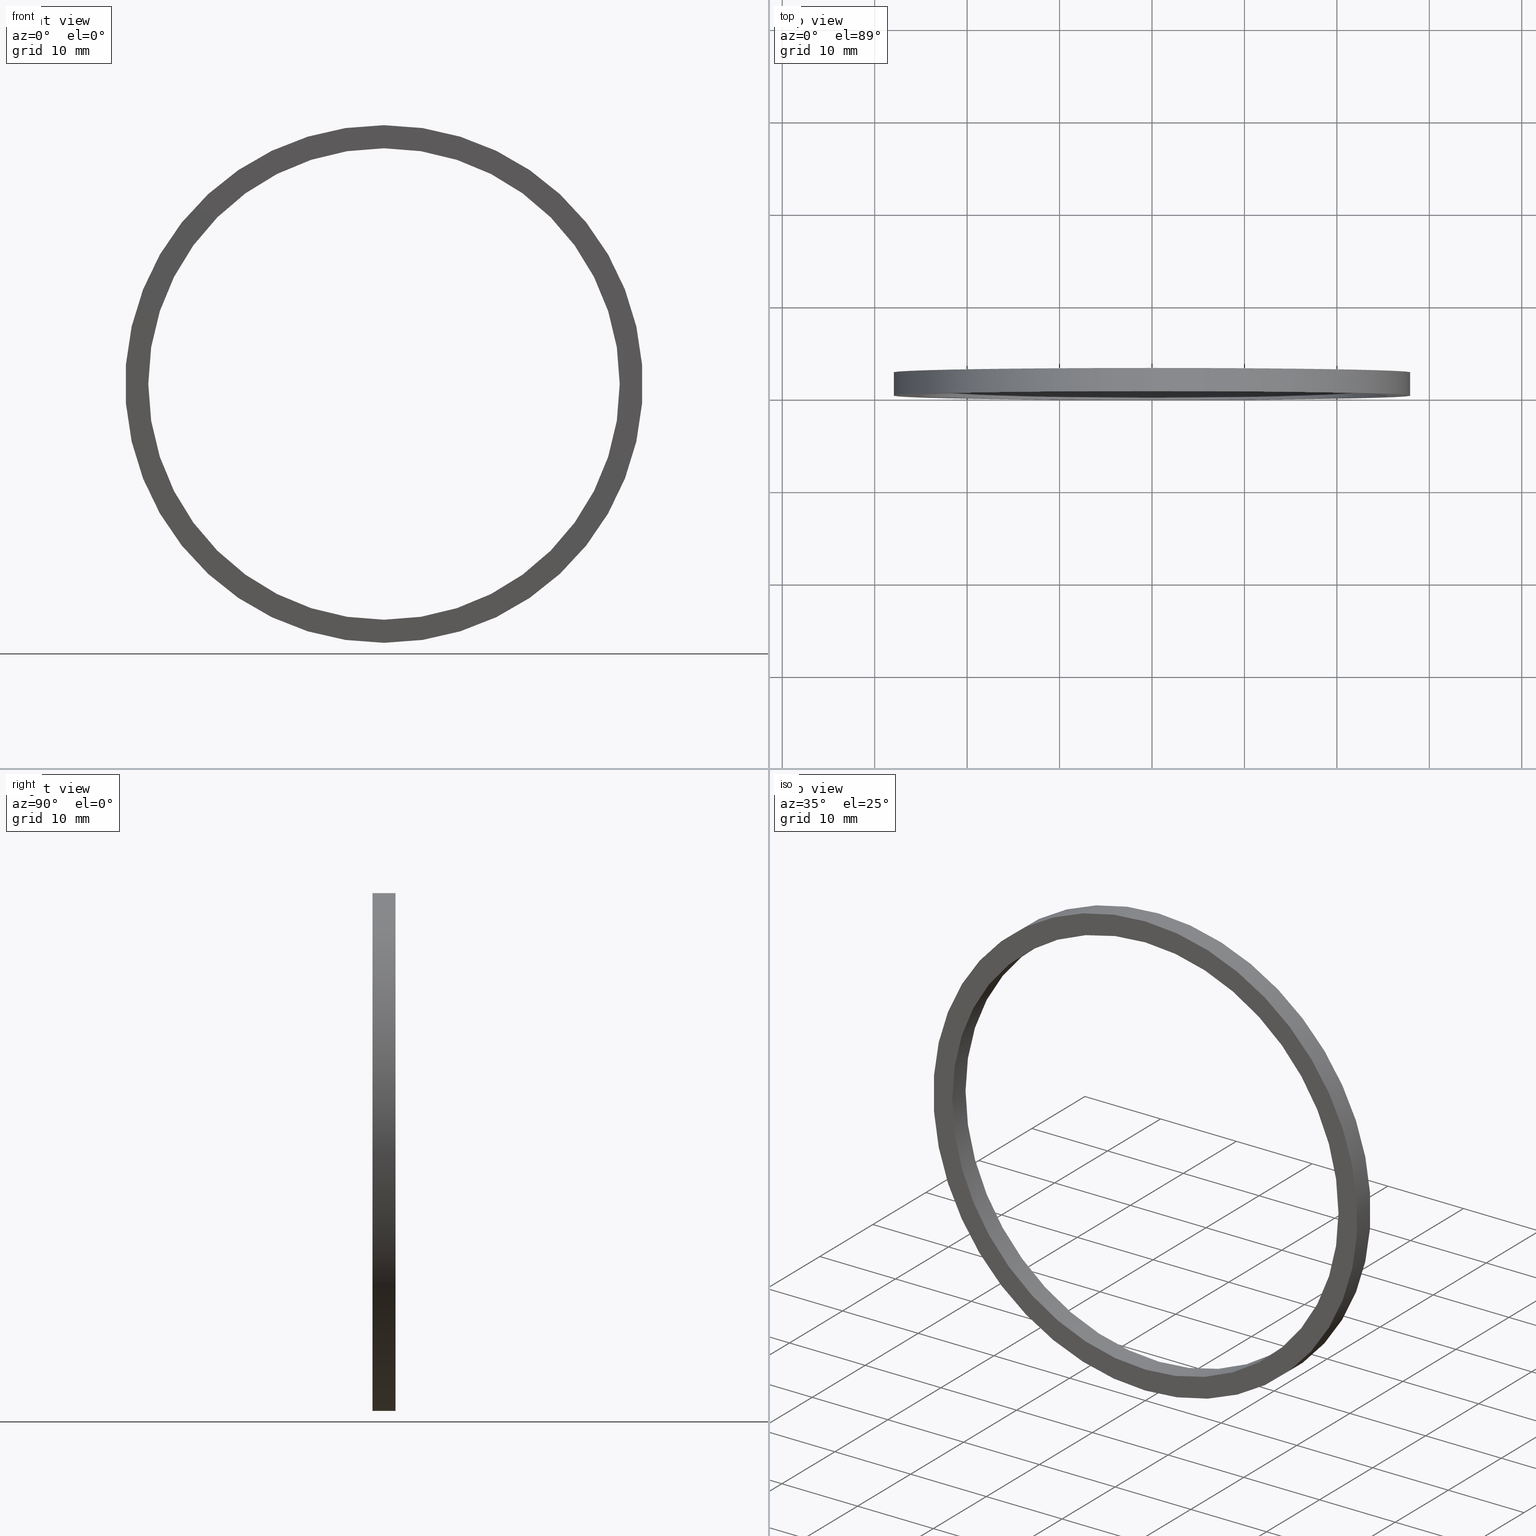
[diagram: canonical four-view strip — front | top / right | iso, engineering-drawing reading convention]
A machine part, canonical four-view strip (front | top / right | iso — engineering-drawing reading convention). The complete STEP part file that produces these views, byte-faithful:
ISO-10303-21;
HEADER;
FILE_DESCRIPTION (( 'STEP AP214' ),
    '1' );
FILE_NAME ('511000.STEP',
    '2019-09-12T07:14:48',
    ( '' ),
    ( '' ),
    'SwSTEP 2.0',
    'SolidWorks 2016',
    '' );
FILE_SCHEMA (( 'AUTOMOTIVE_DESIGN' ));
ENDSEC;

DATA;
#1 = ADVANCED_FACE ( 'NONE', ( #104, #24 ), #207, .F. ) ;
#2 = CARTESIAN_POINT ( 'NONE',  ( 3.122849337825750600E-015, 0.0000000000000000000, -25.50000000000000000 ) ) ;
#3 = CIRCLE ( 'NONE', #190, 28.00000000000001100 ) ;
#4 = DIRECTION ( 'NONE',  ( 0.0000000000000000000, 0.0000000000000000000, 1.000000000000000000 ) ) ;
#5 = CARTESIAN_POINT ( 'NONE',  ( 3.122849337825751000E-015, 77.14414226561778800, -25.50000000000000400 ) ) ;
#6 = CIRCLE ( 'NONE', #13, 28.00000000000001100 ) ;
#7 = PRESENTATION_LAYER_ASSIGNMENT (  '', '', ( #197 ) ) ;
#8 = APPLICATION_PROTOCOL_DEFINITION ( 'draft international standard', 'automotive_design', 1998, #100 ) ;
#9 = FILL_AREA_STYLE_COLOUR ( '', #175 ) ;
#10 = SURFACE_SIDE_STYLE ('',( #71 ) ) ;
#11 = FILL_AREA_STYLE ('',( #120 ) ) ;
#12 = VERTEX_POINT ( 'NONE', #53 ) ;
#13 = AXIS2_PLACEMENT_3D ( 'NONE', #193, #112, #80 ) ;
#14 = LINE ( 'NONE', #5, #54 ) ;
#15 = UNCERTAINTY_MEASURE_WITH_UNIT (LENGTH_MEASURE( 1.000000000000000100E-005 ), #237, 'distance_accuracy_value', 'NONE');
#16 = VERTEX_POINT ( 'NONE', #109 ) ;
#17 = ADVANCED_FACE ( 'NONE', ( #101 ), #51, .T. ) ;
#18 = CYLINDRICAL_SURFACE ( 'NONE', #146, 28.00000000000001100 ) ;
#19 = PRESENTATION_LAYER_ASSIGNMENT (  '', '', ( #36 ) ) ;
#20 = ADVANCED_BREP_SHAPE_REPRESENTATION ( '511000', ( #138, #181 ), #130 ) ;
#21 = CARTESIAN_POINT ( 'NONE',  ( 0.0000000000000000000, 77.14414226561778800, 0.0000000000000000000 ) ) ;
#22 = CARTESIAN_POINT ( 'NONE',  ( 25.50000000000000700, 2.500000000000000000, 0.0000000000000000000 ) ) ;
#23 = SURFACE_STYLE_USAGE ( .BOTH. , #211 ) ;
#24 = FACE_BOUND ( 'NONE', #188, .T. ) ;
#25 =( NAMED_UNIT ( * ) PLANE_ANGLE_UNIT ( ) SI_UNIT ( $, .RADIAN. ) );
#26 = DIRECTION ( 'NONE',  ( 1.000000000000000000, 0.0000000000000000000, 0.0000000000000000000 ) ) ;
#27 =( NAMED_UNIT ( * ) SI_UNIT ( $, .STERADIAN. ) SOLID_ANGLE_UNIT ( ) );
#28 = PRODUCT_DEFINITION_CONTEXT ( 'detailed design', #84, 'design' ) ;
#29 = CARTESIAN_POINT ( 'NONE',  ( 0.0000000000000000000, 0.0000000000000000000, 0.0000000000000000000 ) ) ;
#30 = VERTEX_POINT ( 'NONE', #2 ) ;
#31 = MECHANICAL_DESIGN_GEOMETRIC_PRESENTATION_REPRESENTATION (  '', ( #36 ), #113 ) ;
#32 = EDGE_LOOP ( 'NONE', ( #163, #199 ) ) ;
#33 = COLOUR_RGB ( '',1.000000000000000000, 1.000000000000000000, 1.000000000000000000 ) ;
#34 = ORIENTED_EDGE ( 'NONE', *, *, #142, .T. ) ;
#35 = VECTOR ( 'NONE', #57, 1000.000000000000000 ) ;
#36 = STYLED_ITEM ( 'NONE', ( #107 ), #20 ) ;
#37 = CYLINDRICAL_SURFACE ( 'NONE', #52, 25.50000000000000400 ) ;
#38 = PLANE ( 'NONE',  #184 ) ;
#39 = EDGE_CURVE ( 'NONE', #30, #228, #89, .T. ) ;
#40 = CARTESIAN_POINT ( 'NONE',  ( 3.429011037612590100E-015, 2.500000000000002200, -28.00000000000001100 ) ) ;
#41 = ORIENTED_EDGE ( 'NONE', *, *, #39, .T. ) ;
#42 = DIRECTION ( 'NONE',  ( 0.0000000000000000000, 0.0000000000000000000, 1.000000000000000000 ) ) ;
#43 = MECHANICAL_DESIGN_GEOMETRIC_PRESENTATION_REPRESENTATION (  '', ( #216 ), #231 ) ;
#44 = SURFACE_SIDE_STYLE ('',( #160 ) ) ;
#45 =( NAMED_UNIT ( * ) PLANE_ANGLE_UNIT ( ) SI_UNIT ( $, .RADIAN. ) );
#46 = FILL_AREA_STYLE_COLOUR ( '', #153 ) ;
#47 = EDGE_CURVE ( 'NONE', #78, #16, #3, .T. ) ;
#48 = UNCERTAINTY_MEASURE_WITH_UNIT (LENGTH_MEASURE( 1.000000000000000100E-005 ), #87, 'distance_accuracy_value', 'NONE');
#49 = ORIENTED_EDGE ( 'NONE', *, *, #39, .F. ) ;
#50 = EDGE_CURVE ( 'NONE', #30, #209, #14, .T. ) ;
#51 = CYLINDRICAL_SURFACE ( 'NONE', #177, 28.00000000000001100 ) ;
#52 = AXIS2_PLACEMENT_3D ( 'NONE', #196, #82, #140 ) ;
#53 = CARTESIAN_POINT ( 'NONE',  ( 0.0000000000000000000, 0.0000000000000000000, 28.00000000000001100 ) ) ;
#54 = VECTOR ( 'NONE', #154, 1000.000000000000000 ) ;
#55 = AXIS2_PLACEMENT_3D ( 'NONE', #58, #208, #4 ) ;
#56 =( LENGTH_UNIT ( ) NAMED_UNIT ( * ) SI_UNIT ( .MILLI., .METRE. ) );
#57 = DIRECTION ( 'NONE',  ( -0.0000000000000000000, 1.000000000000000000, -0.0000000000000000000 ) ) ;
#58 = CARTESIAN_POINT ( 'NONE',  ( 0.0000000000000000000, 2.500000000000002200, 0.0000000000000000000 ) ) ;
#59 = PRODUCT ( '511000', '511000', '', ( #176 ) ) ;
#60 = ORIENTED_EDGE ( 'NONE', *, *, #105, .F. ) ;
#61 = PRESENTATION_STYLE_ASSIGNMENT (( #236 ) ) ;
#62 = DIRECTION ( 'NONE',  ( -0.0000000000000000000, 1.000000000000000000, -0.0000000000000000000 ) ) ;
#63 = DIRECTION ( 'NONE',  ( -0.0000000000000000000, 1.000000000000000000, -0.0000000000000000000 ) ) ;
#64 = SURFACE_STYLE_USAGE ( .BOTH. , #213 ) ;
#65 = APPLICATION_PROTOCOL_DEFINITION ( 'draft international standard', 'automotive_design', 1998, #84 ) ;
#66 = MECHANICAL_DESIGN_GEOMETRIC_PRESENTATION_REPRESENTATION (  '', ( #197 ), #172 ) ;
#67 =( LENGTH_UNIT ( ) NAMED_UNIT ( * ) SI_UNIT ( .MILLI., .METRE. ) );
#68 = FILL_AREA_STYLE ('',( #9 ) ) ;
#69 = EDGE_CURVE ( 'NONE', #209, #152, #128, .T. ) ;
#70 = UNCERTAINTY_MEASURE_WITH_UNIT (LENGTH_MEASURE( 1.000000000000000100E-005 ), #67, 'distance_accuracy_value', 'NONE');
#71 = SURFACE_STYLE_FILL_AREA ( #11 ) ;
#72 = ORIENTED_EDGE ( 'NONE', *, *, #47, .F. ) ;
#73 =( GEOMETRIC_REPRESENTATION_CONTEXT ( 3 ) GLOBAL_UNCERTAINTY_ASSIGNED_CONTEXT ( ( #233 ) ) GLOBAL_UNIT_ASSIGNED_CONTEXT ( ( #56, #99, #133 ) ) REPRESENTATION_CONTEXT ( 'NONE', 'WORKASPACE' ) );
#74 = EDGE_LOOP ( 'NONE', ( #49, #182, #91, #81 ) ) ;
#75 = PRESENTATION_STYLE_ASSIGNMENT (( #64 ) ) ;
#76 = CARTESIAN_POINT ( 'NONE',  ( 3.429011037612590100E-015, 77.14414226561778800, -28.00000000000001100 ) ) ;
#77 = DIRECTION ( 'NONE',  ( 0.0000000000000000000, -0.0000000000000000000, -1.000000000000000000 ) ) ;
#78 = VERTEX_POINT ( 'NONE', #40 ) ;
#79 = DIRECTION ( 'NONE',  ( -0.0000000000000000000, 1.000000000000000000, -0.0000000000000000000 ) ) ;
#80 = DIRECTION ( 'NONE',  ( 0.0000000000000000000, 0.0000000000000000000, 1.000000000000000000 ) ) ;
#81 = ORIENTED_EDGE ( 'NONE', *, *, #142, .F. ) ;
#82 = DIRECTION ( 'NONE',  ( -0.0000000000000000000, 1.000000000000000000, -0.0000000000000000000 ) ) ;
#83 = FACE_OUTER_BOUND ( 'NONE', #127, .T. ) ;
#84 = APPLICATION_CONTEXT ( 'automotive_design' ) ;
#85 =( NAMED_UNIT ( * ) SI_UNIT ( $, .STERADIAN. ) SOLID_ANGLE_UNIT ( ) );
#86 = DIRECTION ( 'NONE',  ( 0.0000000000000000000, 0.0000000000000000000, 1.000000000000000000 ) ) ;
#87 =( LENGTH_UNIT ( ) NAMED_UNIT ( * ) SI_UNIT ( .MILLI., .METRE. ) );
#88 = ORIENTED_EDGE ( 'NONE', *, *, #155, .T. ) ;
#89 = CIRCLE ( 'NONE', #158, 25.50000000000000000 ) ;
#90 = EDGE_LOOP ( 'NONE', ( #97, #201, #88, #72 ) ) ;
#91 = ORIENTED_EDGE ( 'NONE', *, *, #69, .T. ) ;
#92 = LINE ( 'NONE', #95, #35 ) ;
#93 = SHAPE_DEFINITION_REPRESENTATION ( #203, #20 ) ;
#94 = DIRECTION ( 'NONE',  ( -0.0000000000000000000, 1.000000000000000000, -0.0000000000000000000 ) ) ;
#95 = CARTESIAN_POINT ( 'NONE',  ( 0.0000000000000000000, 77.14414226561778800, 25.50000000000000400 ) ) ;
#96 = CARTESIAN_POINT ( 'NONE',  ( 0.0000000000000000000, 0.0000000000000000000, 0.0000000000000000000 ) ) ;
#97 = ORIENTED_EDGE ( 'NONE', *, *, #205, .F. ) ;
#98 = CIRCLE ( 'NONE', #242, 25.50000000000000000 ) ;
#99 =( NAMED_UNIT ( * ) PLANE_ANGLE_UNIT ( ) SI_UNIT ( $, .RADIAN. ) );
#100 = APPLICATION_CONTEXT ( 'automotive_design' ) ;
#101 = FACE_OUTER_BOUND ( 'NONE', #90, .T. ) ;
#102 = DIRECTION ( 'NONE',  ( -0.0000000000000000000, 1.000000000000000000, -0.0000000000000000000 ) ) ;
#103 = AXIS2_PLACEMENT_3D ( 'NONE', #29, #102, #86 ) ;
#104 = FACE_OUTER_BOUND ( 'NONE', #32, .T. ) ;
#105 = EDGE_CURVE ( 'NONE', #16, #78, #6, .T. ) ;
#106 = AXIS2_PLACEMENT_3D ( 'NONE', #151, #79, #137 ) ;
#107 = PRESENTATION_STYLE_ASSIGNMENT (( #156 ) ) ;
#108 = EDGE_CURVE ( 'NONE', #152, #209, #115, .T. ) ;
#109 = CARTESIAN_POINT ( 'NONE',  ( 0.0000000000000000000, 2.500000000000002200, 28.00000000000001100 ) ) ;
#110 = CIRCLE ( 'NONE', #150, 28.00000000000001100 ) ;
#111 = DIRECTION ( 'NONE',  ( -0.0000000000000000000, 1.000000000000000000, -0.0000000000000000000 ) ) ;
#112 = DIRECTION ( 'NONE',  ( -0.0000000000000000000, 1.000000000000000000, -0.0000000000000000000 ) ) ;
#113 =( GEOMETRIC_REPRESENTATION_CONTEXT ( 3 ) GLOBAL_UNCERTAINTY_ASSIGNED_CONTEXT ( ( #215 ) ) GLOBAL_UNIT_ASSIGNED_CONTEXT ( ( #157, #45, #159 ) ) REPRESENTATION_CONTEXT ( 'NONE', 'WORKASPACE' ) );
#114 = ORIENTED_EDGE ( 'NONE', *, *, #161, .T. ) ;
#115 = CIRCLE ( 'NONE', #167, 25.50000000000000700 ) ;
#116 = CARTESIAN_POINT ( 'NONE',  ( 0.0000000000000000000, 2.500000000000002200, 0.0000000000000000000 ) ) ;
#117 = CARTESIAN_POINT ( 'NONE',  ( 0.0000000000000000000, 2.500000000000002200, 25.50000000000000700 ) ) ;
#118 = DIRECTION ( 'NONE',  ( 0.0000000000000000000, 0.0000000000000000000, 1.000000000000000000 ) ) ;
#119 =( NAMED_UNIT ( * ) PLANE_ANGLE_UNIT ( ) SI_UNIT ( $, .RADIAN. ) );
#120 = FILL_AREA_STYLE_COLOUR ( '', #33 ) ;
#121 = ORIENTED_EDGE ( 'NONE', *, *, #105, .T. ) ;
#122 = ORIENTED_EDGE ( 'NONE', *, *, #50, .F. ) ;
#123 = ORIENTED_EDGE ( 'NONE', *, *, #205, .T. ) ;
#124 = SURFACE_STYLE_FILL_AREA ( #68 ) ;
#125 = VERTEX_POINT ( 'NONE', #195 ) ;
#126 = DIRECTION ( 'NONE',  ( -0.0000000000000000000, 1.000000000000000000, -0.0000000000000000000 ) ) ;
#127 = EDGE_LOOP ( 'NONE', ( #122, #145, #34, #139 ) ) ;
#128 = CIRCLE ( 'NONE', #55, 25.50000000000000700 ) ;
#129 = DIRECTION ( 'NONE',  ( -0.0000000000000000000, 1.000000000000000000, 0.0000000000000000000 ) ) ;
#130 =( GEOMETRIC_REPRESENTATION_CONTEXT ( 3 ) GLOBAL_UNCERTAINTY_ASSIGNED_CONTEXT ( ( #15 ) ) GLOBAL_UNIT_ASSIGNED_CONTEXT ( ( #237, #136, #179 ) ) REPRESENTATION_CONTEXT ( 'NONE', 'WORKASPACE' ) );
#131 = DIRECTION ( 'NONE',  ( -0.0000000000000000000, 1.000000000000000000, -0.0000000000000000000 ) ) ;
#132 = FILL_AREA_STYLE ('',( #148 ) ) ;
#133 =( NAMED_UNIT ( * ) SI_UNIT ( $, .STERADIAN. ) SOLID_ANGLE_UNIT ( ) );
#134 = ORIENTED_EDGE ( 'NONE', *, *, #69, .F. ) ;
#135 = AXIS2_PLACEMENT_3D ( 'NONE', #204, #129, #222 ) ;
#136 =( NAMED_UNIT ( * ) PLANE_ANGLE_UNIT ( ) SI_UNIT ( $, .RADIAN. ) );
#137 = DIRECTION ( 'NONE',  ( 0.0000000000000000000, 0.0000000000000000000, 1.000000000000000000 ) ) ;
#138 = MANIFOLD_SOLID_BREP ( '��ת1', #239 ) ;
#139 = ORIENTED_EDGE ( 'NONE', *, *, #108, .T. ) ;
#140 = DIRECTION ( 'NONE',  ( 0.0000000000000000000, 0.0000000000000000000, 1.000000000000000000 ) ) ;
#141 = FILL_AREA_STYLE ('',( #46 ) ) ;
#142 = EDGE_CURVE ( 'NONE', #228, #152, #92, .T. ) ;
#143 = PRODUCT_RELATED_PRODUCT_CATEGORY ( 'part', '', ( #59 ) ) ;
#144 = COLOUR_RGB ( '',1.000000000000000000, 1.000000000000000000, 1.000000000000000000 ) ;
#145 = ORIENTED_EDGE ( 'NONE', *, *, #161, .F. ) ;
#146 = AXIS2_PLACEMENT_3D ( 'NONE', #21, #94, #230 ) ;
#147 = ADVANCED_FACE ( 'NONE', ( #183, #212 ), #38, .F. ) ;
#148 = FILL_AREA_STYLE_COLOUR ( '', #144 ) ;
#149 = DIRECTION ( 'NONE',  ( -0.0000000000000000000, 1.000000000000000000, -0.0000000000000000000 ) ) ;
#150 = AXIS2_PLACEMENT_3D ( 'NONE', #180, #63, #118 ) ;
#151 = CARTESIAN_POINT ( 'NONE',  ( 0.0000000000000000000, 77.14414226561778800, 0.0000000000000000000 ) ) ;
#152 = VERTEX_POINT ( 'NONE', #117 ) ;
#153 = COLOUR_RGB ( '',1.000000000000000000, 1.000000000000000000, 1.000000000000000000 ) ;
#154 = DIRECTION ( 'NONE',  ( -0.0000000000000000000, 1.000000000000000000, -0.0000000000000000000 ) ) ;
#155 = EDGE_CURVE ( 'NONE', #12, #16, #162, .T. ) ;
#156 = SURFACE_STYLE_USAGE ( .BOTH. , #10 ) ;
#157 =( LENGTH_UNIT ( ) NAMED_UNIT ( * ) SI_UNIT ( .MILLI., .METRE. ) );
#158 = AXIS2_PLACEMENT_3D ( 'NONE', #96, #229, #42 ) ;
#159 =( NAMED_UNIT ( * ) SI_UNIT ( $, .STERADIAN. ) SOLID_ANGLE_UNIT ( ) );
#160 = SURFACE_STYLE_FILL_AREA ( #141 ) ;
#161 = EDGE_CURVE ( 'NONE', #228, #30, #98, .T. ) ;
#162 = LINE ( 'NONE', #227, #202 ) ;
#163 = ORIENTED_EDGE ( 'NONE', *, *, #217, .F. ) ;
#164 = VECTOR ( 'NONE', #170, 1000.000000000000000 ) ;
#165 = ADVANCED_FACE ( 'NONE', ( #244 ), #18, .T. ) ;
#166 = DIRECTION ( 'NONE',  ( 0.0000000000000000000, 0.0000000000000000000, 1.000000000000000000 ) ) ;
#167 = AXIS2_PLACEMENT_3D ( 'NONE', #171, #131, #192 ) ;
#168 = CARTESIAN_POINT ( 'NONE',  ( 0.0000000000000000000, 0.0000000000000000000, 0.0000000000000000000 ) ) ;
#169 = ORIENTED_EDGE ( 'NONE', *, *, #47, .T. ) ;
#170 = DIRECTION ( 'NONE',  ( -0.0000000000000000000, 1.000000000000000000, -0.0000000000000000000 ) ) ;
#171 = CARTESIAN_POINT ( 'NONE',  ( 0.0000000000000000000, 2.500000000000002200, 0.0000000000000000000 ) ) ;
#172 =( GEOMETRIC_REPRESENTATION_CONTEXT ( 3 ) GLOBAL_UNCERTAINTY_ASSIGNED_CONTEXT ( ( #70 ) ) GLOBAL_UNIT_ASSIGNED_CONTEXT ( ( #67, #119, #27 ) ) REPRESENTATION_CONTEXT ( 'NONE', 'WORKASPACE' ) );
#173 = CARTESIAN_POINT ( 'NONE',  ( 0.0000000000000000000, 0.0000000000000000000, 0.0000000000000000000 ) ) ;
#174 = EDGE_LOOP ( 'NONE', ( #220, #123, #60, #223 ) ) ;
#175 = COLOUR_RGB ( '',1.000000000000000000, 1.000000000000000000, 1.000000000000000000 ) ;
#176 = PRODUCT_CONTEXT ( 'NONE', #100, 'mechanical' ) ;
#177 = AXIS2_PLACEMENT_3D ( 'NONE', #226, #126, #166 ) ;
#178 = DIRECTION ( 'NONE',  ( 0.0000000000000000000, 0.0000000000000000000, 1.000000000000000000 ) ) ;
#179 =( NAMED_UNIT ( * ) SI_UNIT ( $, .STERADIAN. ) SOLID_ANGLE_UNIT ( ) );
#180 = CARTESIAN_POINT ( 'NONE',  ( 0.0000000000000000000, 0.0000000000000000000, 0.0000000000000000000 ) ) ;
#181 = AXIS2_PLACEMENT_3D ( 'NONE', #173, #178, #26 ) ;
#182 = ORIENTED_EDGE ( 'NONE', *, *, #50, .T. ) ;
#183 = FACE_BOUND ( 'NONE', #186, .T. ) ;
#184 = AXIS2_PLACEMENT_3D ( 'NONE', #22, #234, #77 ) ;
#185 = STYLED_ITEM ( 'NONE', ( #210 ), #138 ) ;
#186 = EDGE_LOOP ( 'NONE', ( #206, #134 ) ) ;
#187 = CIRCLE ( 'NONE', #103, 28.00000000000001100 ) ;
#188 = EDGE_LOOP ( 'NONE', ( #114, #41 ) ) ;
#189 = PRESENTATION_LAYER_ASSIGNMENT (  '', '', ( #216 ) ) ;
#190 = AXIS2_PLACEMENT_3D ( 'NONE', #116, #62, #191 ) ;
#191 = DIRECTION ( 'NONE',  ( 0.0000000000000000000, 0.0000000000000000000, 1.000000000000000000 ) ) ;
#192 = DIRECTION ( 'NONE',  ( 0.0000000000000000000, 0.0000000000000000000, 1.000000000000000000 ) ) ;
#193 = CARTESIAN_POINT ( 'NONE',  ( 0.0000000000000000000, 2.500000000000002200, 0.0000000000000000000 ) ) ;
#194 = PRODUCT_DEFINITION ( 'δ֪', '', #238, #28 ) ;
#195 = CARTESIAN_POINT ( 'NONE',  ( 3.429011037612590100E-015, 0.0000000000000000000, -28.00000000000001100 ) ) ;
#196 = CARTESIAN_POINT ( 'NONE',  ( 0.0000000000000000000, 77.14414226561778800, 0.0000000000000000000 ) ) ;
#197 = STYLED_ITEM ( 'NONE', ( #61 ), #221 ) ;
#198 = PRESENTATION_LAYER_ASSIGNMENT (  '', '', ( #185 ) ) ;
#199 = ORIENTED_EDGE ( 'NONE', *, *, #243, .F. ) ;
#200 = SURFACE_STYLE_FILL_AREA ( #132 ) ;
#201 = ORIENTED_EDGE ( 'NONE', *, *, #243, .T. ) ;
#202 = VECTOR ( 'NONE', #149, 1000.000000000000000 ) ;
#203 = PRODUCT_DEFINITION_SHAPE ( 'NONE', 'NONE',  #194 ) ;
#204 = CARTESIAN_POINT ( 'NONE',  ( 25.50000000000000000, 0.0000000000000000000, 0.0000000000000000000 ) ) ;
#205 = EDGE_CURVE ( 'NONE', #125, #78, #235, .T. ) ;
#206 = ORIENTED_EDGE ( 'NONE', *, *, #108, .F. ) ;
#207 = PLANE ( 'NONE',  #135 ) ;
#208 = DIRECTION ( 'NONE',  ( -0.0000000000000000000, 1.000000000000000000, -0.0000000000000000000 ) ) ;
#209 = VERTEX_POINT ( 'NONE', #214 ) ;
#210 = PRESENTATION_STYLE_ASSIGNMENT (( #23 ) ) ;
#211 = SURFACE_SIDE_STYLE ('',( #200 ) ) ;
#212 = FACE_OUTER_BOUND ( 'NONE', #241, .T. ) ;
#213 = SURFACE_SIDE_STYLE ('',( #124 ) ) ;
#214 = CARTESIAN_POINT ( 'NONE',  ( 3.122849337825751800E-015, 2.500000000000002200, -25.50000000000000700 ) ) ;
#215 = UNCERTAINTY_MEASURE_WITH_UNIT (LENGTH_MEASURE( 1.000000000000000100E-005 ), #157, 'distance_accuracy_value', 'NONE');
#216 = STYLED_ITEM ( 'NONE', ( #75 ), #225 ) ;
#217 = EDGE_CURVE ( 'NONE', #12, #125, #110, .T. ) ;
#218 = CYLINDRICAL_SURFACE ( 'NONE', #106, 25.50000000000000400 ) ;
#219 = MECHANICAL_DESIGN_GEOMETRIC_PRESENTATION_REPRESENTATION (  '', ( #185 ), #73 ) ;
#220 = ORIENTED_EDGE ( 'NONE', *, *, #217, .T. ) ;
#221 = ADVANCED_FACE ( 'NONE', ( #83 ), #218, .F. ) ;
#222 = DIRECTION ( 'NONE',  ( 0.0000000000000000000, 0.0000000000000000000, 1.000000000000000000 ) ) ;
#223 = ORIENTED_EDGE ( 'NONE', *, *, #155, .F. ) ;
#224 = FACE_OUTER_BOUND ( 'NONE', #74, .T. ) ;
#225 = ADVANCED_FACE ( 'NONE', ( #224 ), #37, .F. ) ;
#226 = CARTESIAN_POINT ( 'NONE',  ( 0.0000000000000000000, 77.14414226561778800, 0.0000000000000000000 ) ) ;
#227 = CARTESIAN_POINT ( 'NONE',  ( 0.0000000000000000000, 77.14414226561778800, 28.00000000000001100 ) ) ;
#228 = VERTEX_POINT ( 'NONE', #240 ) ;
#229 = DIRECTION ( 'NONE',  ( -0.0000000000000000000, 1.000000000000000000, -0.0000000000000000000 ) ) ;
#230 = DIRECTION ( 'NONE',  ( 0.0000000000000000000, 0.0000000000000000000, 1.000000000000000000 ) ) ;
#231 =( GEOMETRIC_REPRESENTATION_CONTEXT ( 3 ) GLOBAL_UNCERTAINTY_ASSIGNED_CONTEXT ( ( #48 ) ) GLOBAL_UNIT_ASSIGNED_CONTEXT ( ( #87, #25, #85 ) ) REPRESENTATION_CONTEXT ( 'NONE', 'WORKASPACE' ) );
#232 = DIRECTION ( 'NONE',  ( 0.0000000000000000000, 0.0000000000000000000, 1.000000000000000000 ) ) ;
#233 = UNCERTAINTY_MEASURE_WITH_UNIT (LENGTH_MEASURE( 1.000000000000000100E-005 ), #56, 'distance_accuracy_value', 'NONE');
#234 = DIRECTION ( 'NONE',  ( 0.0000000000000000000, -1.000000000000000000, 0.0000000000000000000 ) ) ;
#235 = LINE ( 'NONE', #76, #164 ) ;
#236 = SURFACE_STYLE_USAGE ( .BOTH. , #44 ) ;
#237 =( LENGTH_UNIT ( ) NAMED_UNIT ( * ) SI_UNIT ( .MILLI., .METRE. ) );
#238 = PRODUCT_DEFINITION_FORMATION_WITH_SPECIFIED_SOURCE ( '�κ�', '', #59, .NOT_KNOWN. ) ;
#239 = CLOSED_SHELL ( 'NONE', ( #225, #165, #1, #17, #147, #221 ) ) ;
#240 = CARTESIAN_POINT ( 'NONE',  ( 0.0000000000000000000, 0.0000000000000000000, 25.50000000000000000 ) ) ;
#241 = EDGE_LOOP ( 'NONE', ( #121, #169 ) ) ;
#242 = AXIS2_PLACEMENT_3D ( 'NONE', #168, #111, #232 ) ;
#243 = EDGE_CURVE ( 'NONE', #125, #12, #187, .T. ) ;
#244 = FACE_OUTER_BOUND ( 'NONE', #174, .T. ) ;
ENDSEC;
END-ISO-10303-21;
